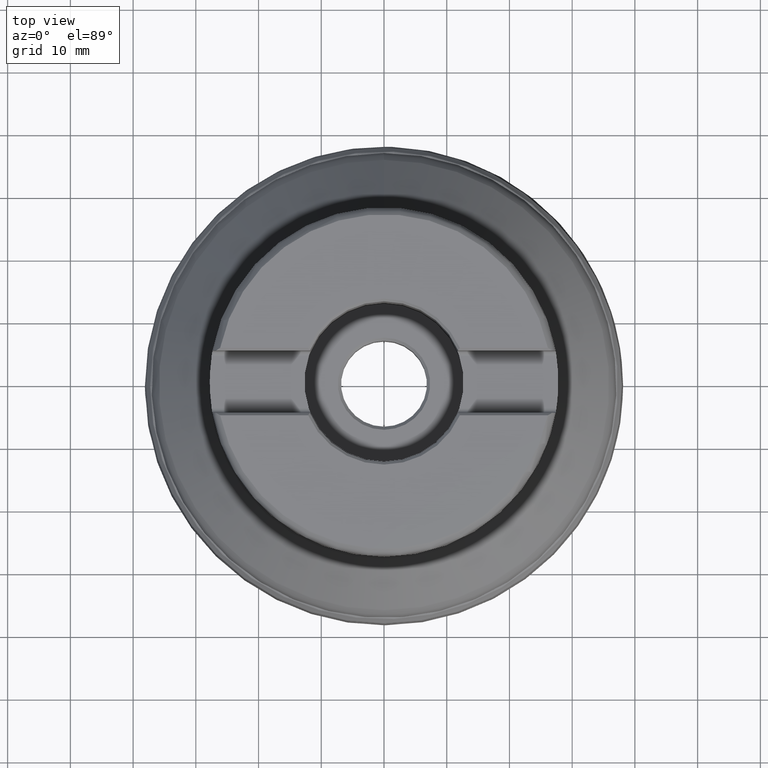
[diagram: clean part render]
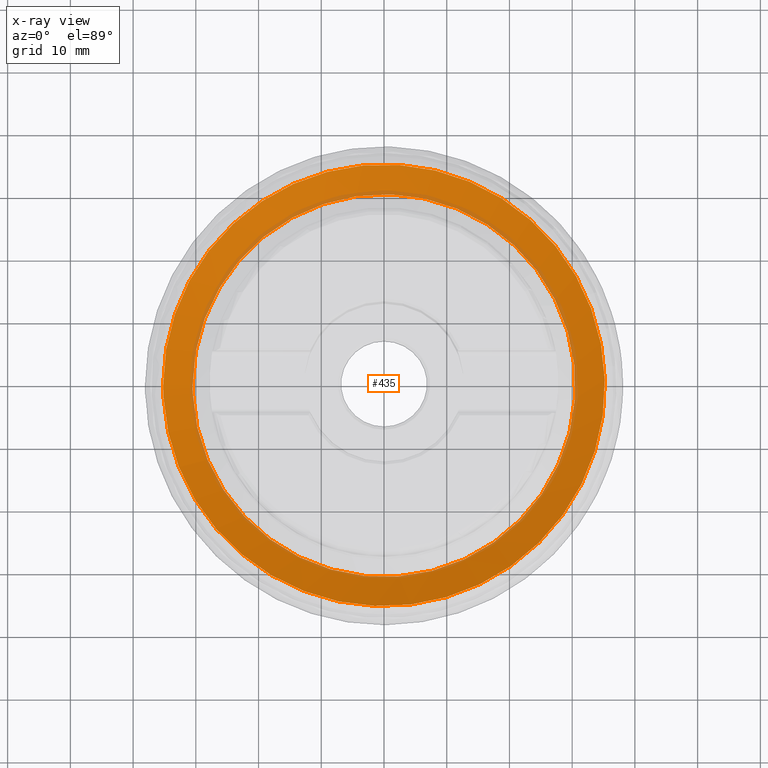
[diagram: x-ray — body ghosted, one internal face saturated and labeled with its STEP entity id]
A machine part, top view, then the same camera in x-ray: the body is ghosted and one INTERNAL B-rep face — a face not visible from any outside direction — is saturated and labeled: STEP entity #435.
In plain terms, the highlighted face is a SurfaceOfRevolution surface.
Its self-contained STEP definition (entity closure, byte-faithful):
#130=SURFACE_OF_REVOLUTION('',#1192,#154);
#154=AXIS1_PLACEMENT('',#2473,#1615);
#272=FACE_BOUND('',#600,.T.);
#273=FACE_BOUND('',#601,.T.);
#435=ADVANCED_FACE('',(#272,#273),#130,.F.);
#600=EDGE_LOOP('',(#905));
#601=EDGE_LOOP('',(#906));
#669=CIRCLE('',#1316,30.5111017823474);
#670=CIRCLE('',#1317,35.213307166192);
#905=ORIENTED_EDGE('',*,*,#1123,.T.);
#906=ORIENTED_EDGE('',*,*,#1124,.F.);
#1004=VERTEX_POINT('',#2458);
#1005=VERTEX_POINT('',#2466);
#1123=EDGE_CURVE('',#1004,#1004,#669,.T.);
#1124=EDGE_CURVE('',#1005,#1005,#670,.T.);
#1192=B_SPLINE_CURVE_WITH_KNOTS('',5,(#2467,#2468,#2469,#2470,#2471,#2472),
 .UNSPECIFIED.,.F.,.F.,(6,6),(0.,1.),.UNSPECIFIED.);
#1316=AXIS2_PLACEMENT_3D('',#2457,#1610,#1611);
#1317=AXIS2_PLACEMENT_3D('',#2465,#1613,#1614);
#1610=DIRECTION('',(0.,0.,-1.));
#1611=DIRECTION('',(-1.,0.,0.));
#1613=DIRECTION('',(0.,0.,-1.));
#1614=DIRECTION('',(-1.,0.,0.));
#1615=DIRECTION('',(0.,0.,-1.));
#2457=CARTESIAN_POINT('',(0.,0.,6.98371583478503));
#2458=CARTESIAN_POINT('',(-30.5111017823474,0.,6.98371583478503));
#2465=CARTESIAN_POINT('',(0.,0.,9.6318432507143));
#2466=CARTESIAN_POINT('',(-35.213307166192,0.,9.6318432507143));
#2467=CARTESIAN_POINT('',(35.127519696818,-2.45649386102793,9.6318432366038));
#2468=CARTESIAN_POINT('',(34.1762858673407,-2.45152543128635,9.11724601745885));
#2469=CARTESIAN_POINT('',(33.2291489237301,-2.44788404722777,8.59506219978693));
#2470=CARTESIAN_POINT('',(32.2861681729368,-2.44556256243387,8.06538116189098));
#2471=CARTESIAN_POINT('',(31.3474168358824,-2.444559529047,7.52825757521984));
#2472=CARTESIAN_POINT('',(30.4129889677357,-2.44487914244281,6.98371583478503));
#2473=CARTESIAN_POINT('',(0.,0.,0.));